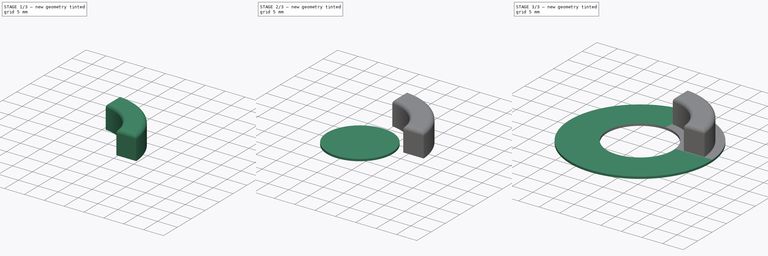
[diagram: build sequence overview — one tinted view per stage of 3, left to right]
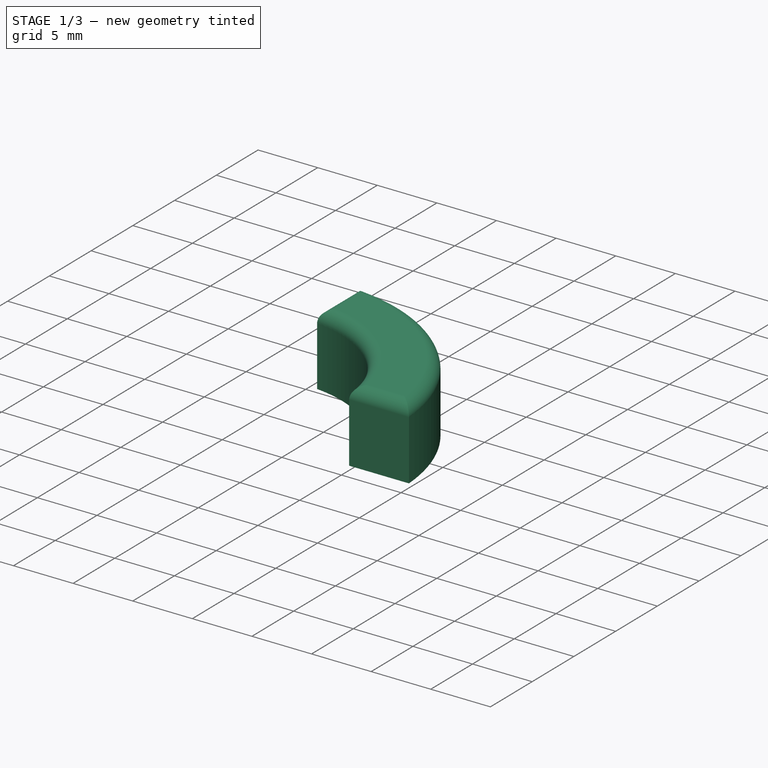
[diagram: stage 1 of 3 — iso view after this stage's code; geometry added in this stage tinted green]
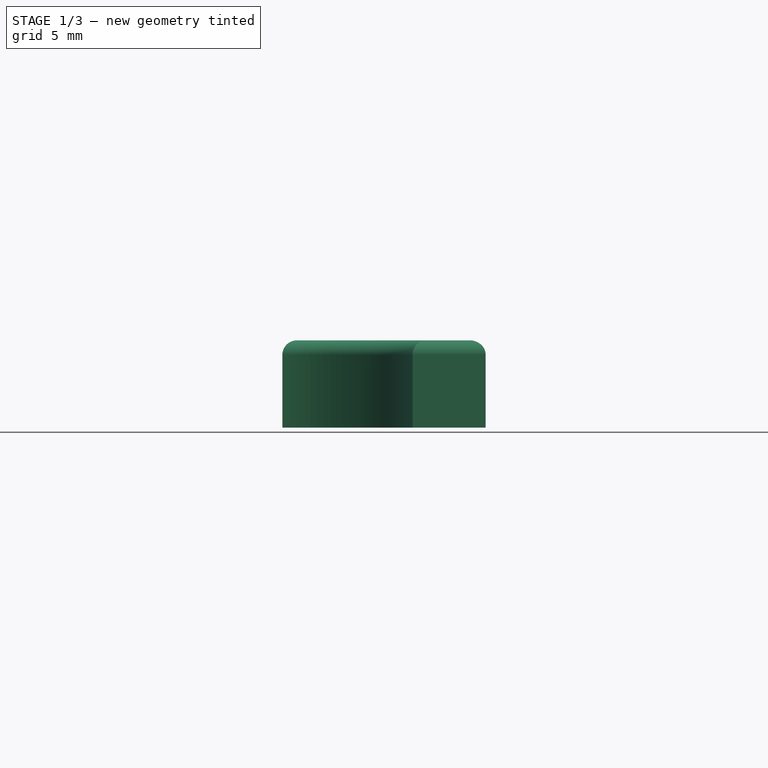
[diagram: stage 1 of 3 — front view after this stage's code; geometry added in this stage tinted green]
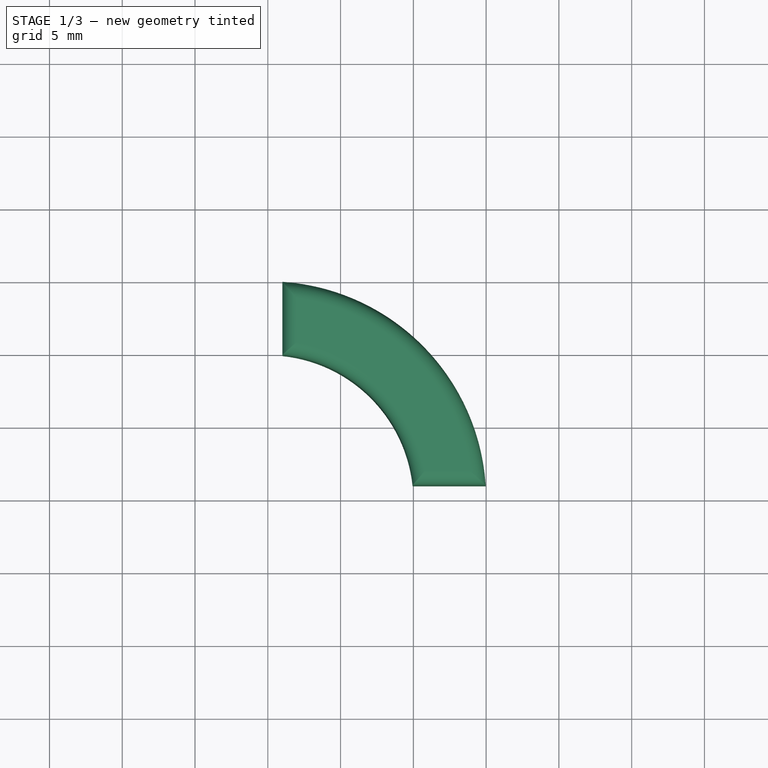
[diagram: stage 1 of 3 — top view after this stage's code; geometry added in this stage tinted green]
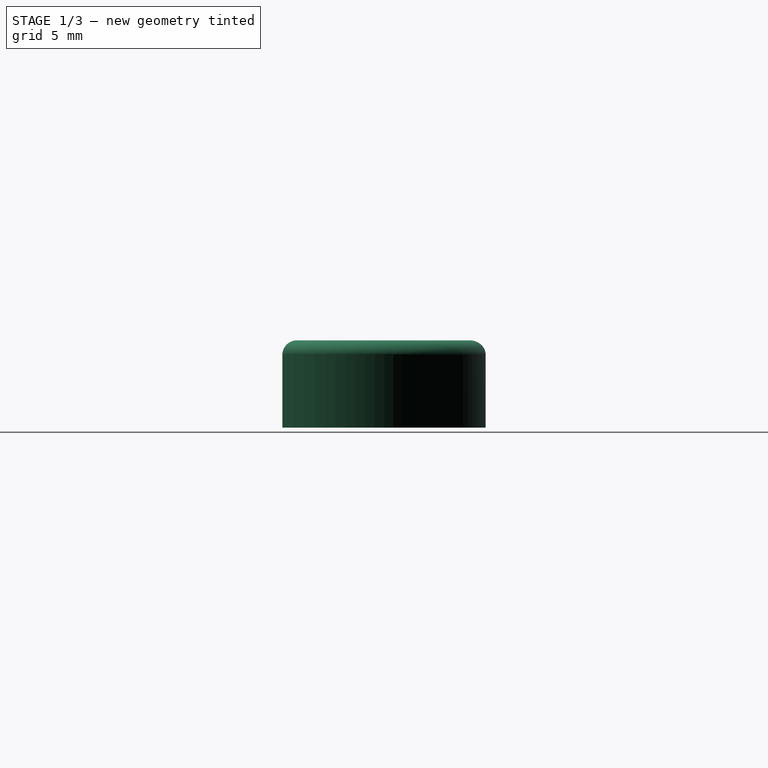
[diagram: stage 1 of 3 — right view after this stage's code; geometry added in this stage tinted green]
FCSTD DOCUMENT  (FreeCAD 0.16R6706 (Git))
Label: Button_Navigation_1.1
License: All rights reserved
LicenseURL: http://en.wikipedia.org/wiki/All_rights_reserved
objects: Sketcher::SketchObject×3, PartDesign::Pad×3, Part::Cut×1, PartDesign::Fillet×1
note: 11 computed .brp shape members not serialized (recipe doc carries the construction recipe); baked Part::Feature solids carry a one-line shape summary decoded from their .brp

FEATURE [Sketcher::SketchObject] Sketch003
  Placement = pos=(0,0,0.5) rot=(0,0,1;0rad)
  sketch-geometry (4):
    g0: LineSegment StartX=1 StartY=9.94987 StartZ=0 EndX=1 EndY=14.9666 EndZ=0
    g1: LineSegment StartX=9.94987 StartY=1 StartZ=0 EndX=14.9666 EndY=1 EndZ=0
    g2: ArcOfCircle CenterX=-0.028536 CenterY=-0.028536 CenterZ=0 NormalX=0 NormalY=0 NormalZ=1 Radius=10.0313 StartAngle=0.102713 EndAngle=1.46808
    g3: ArcOfCircle CenterX=0 CenterY=0 CenterZ=0 NormalX=0 NormalY=0 NormalZ=1 Radius=15 StartAngle=0.0667161 EndAngle=1.50408
  constraints (13):
    c: Vertical(g0)
    c: DistanceX(g-1,g0) = 1
    c: Distance(g-1,g0) = 10
    c: Distance(g-1,g0) = 15
    c: Horizontal(g1)
    c: DistanceY(g-1,g1) = 1
    c: Distance(g-1,g1) = 10
    c: Distance(g-1,g1) = 15
    c: Coincident(g2,g1)
    c: Coincident(g2,g0)
    c: Coincident(g3,g-1)
    c: Coincident(g3,g1)
    c: Coincident(g3,g0)
FEATURE [PartDesign::Pad] Pad003
  Length = 6
  Length2 = 100
  Placement = pos=(0,0,0.5) rot=(0,0,1;0rad)
  Sketch = -> Sketch003
  Type = 0
FEATURE [PartDesign::Fillet] Fillet
  Base = -> Pad003 [Edge4,Edge12,Edge10,Edge7]
  Placement = pos=(0,0,0.5) rot=(0,0,1;0rad)
  Radius = 1
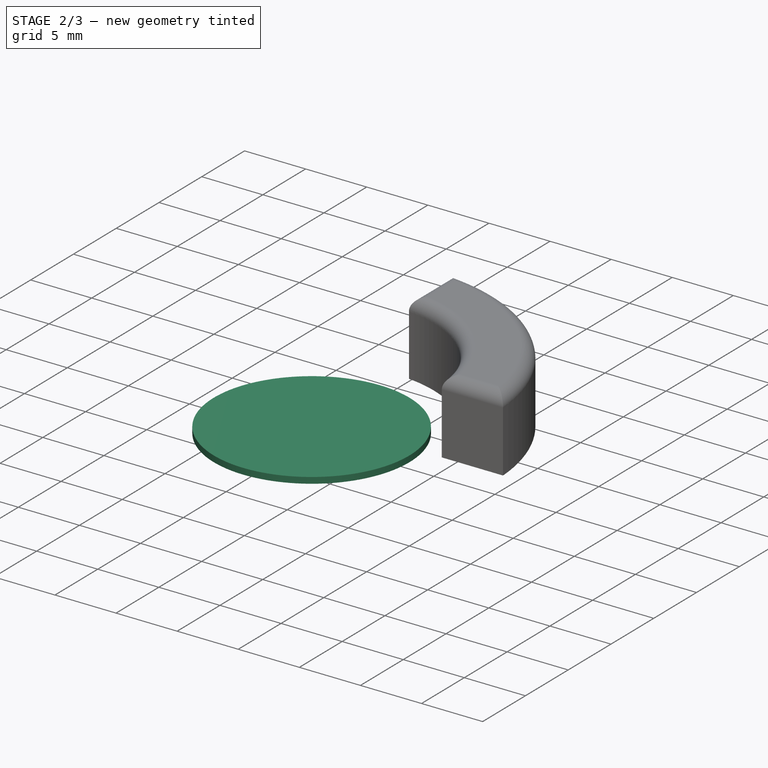
[diagram: stage 2 of 3 — iso view after this stage's code; geometry added in this stage tinted green]
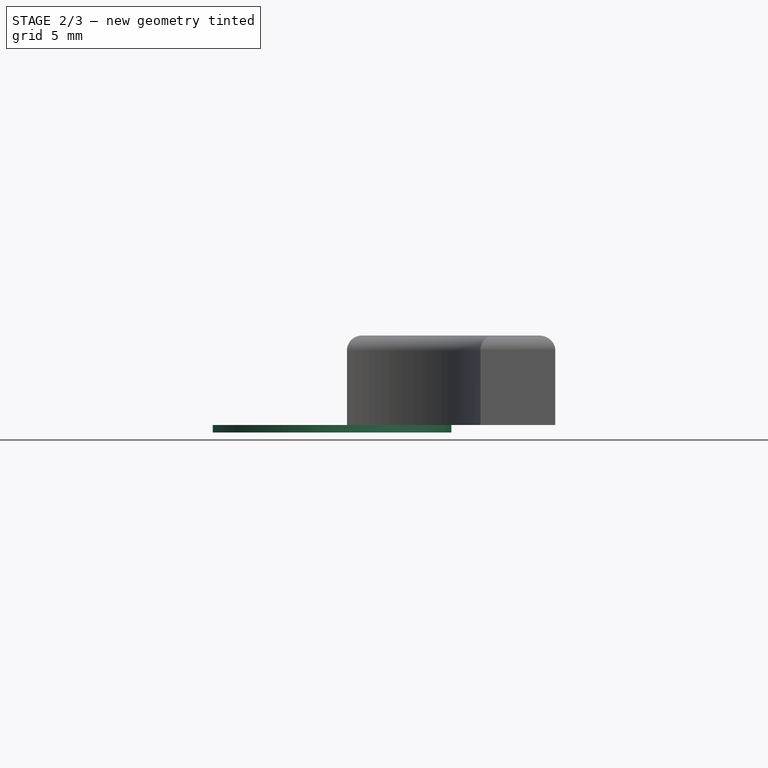
[diagram: stage 2 of 3 — front view after this stage's code; geometry added in this stage tinted green]
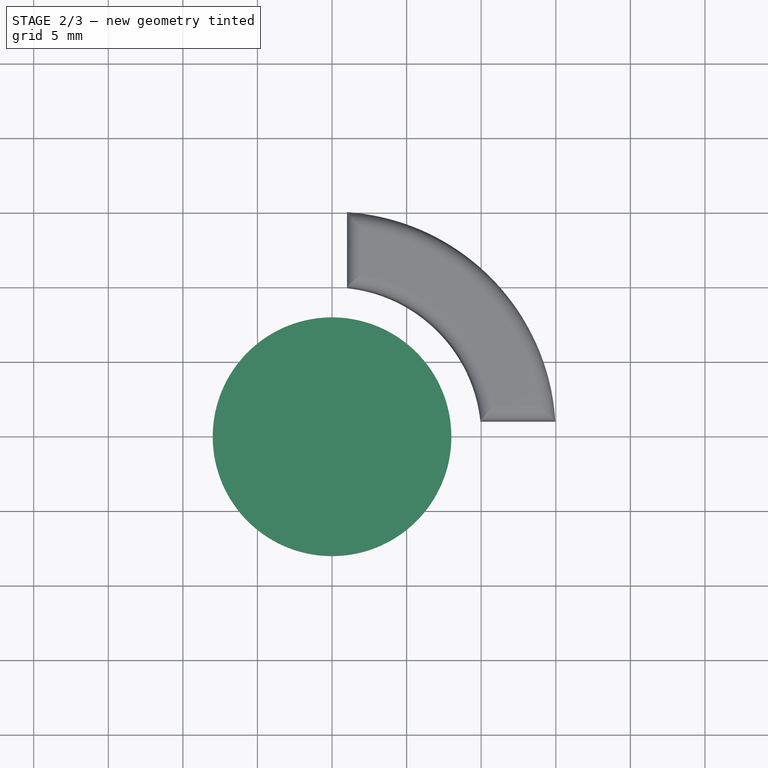
[diagram: stage 2 of 3 — top view after this stage's code; geometry added in this stage tinted green]
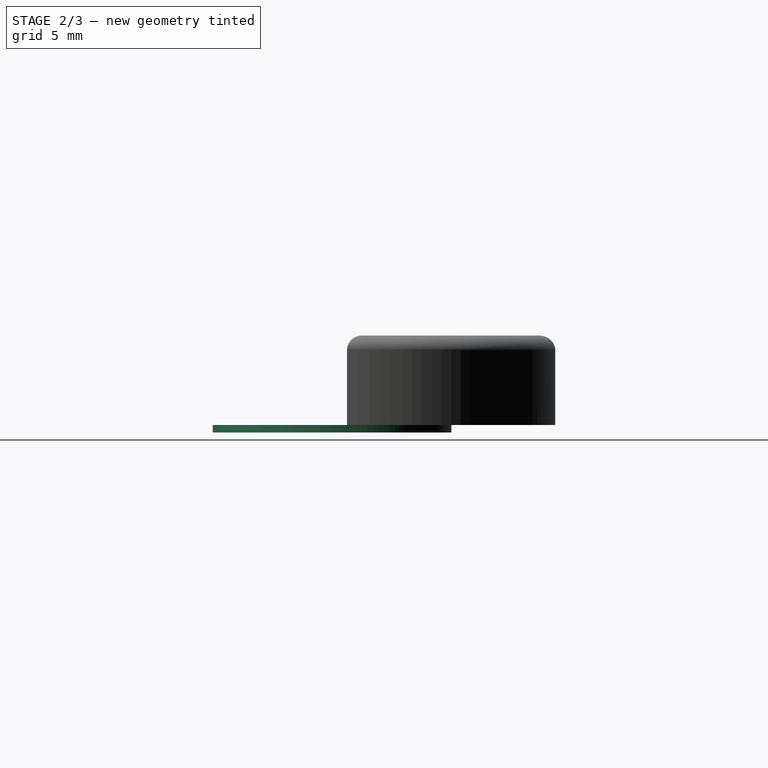
[diagram: stage 2 of 3 — right view after this stage's code; geometry added in this stage tinted green]
FEATURE [Sketcher::SketchObject] Sketch002
  sketch-geometry (1):
    g0: Circle CenterX=0 CenterY=0 CenterZ=0 NormalX=0 NormalY=0 NormalZ=1 Radius=8
  constraints (2):
    c: Coincident(g0,g-1)
    c: Radius(g0) = 8
FEATURE [PartDesign::Pad] Pad002
  Length = 0.5
  Length2 = 100
  Sketch = -> Sketch002
  Type = 0
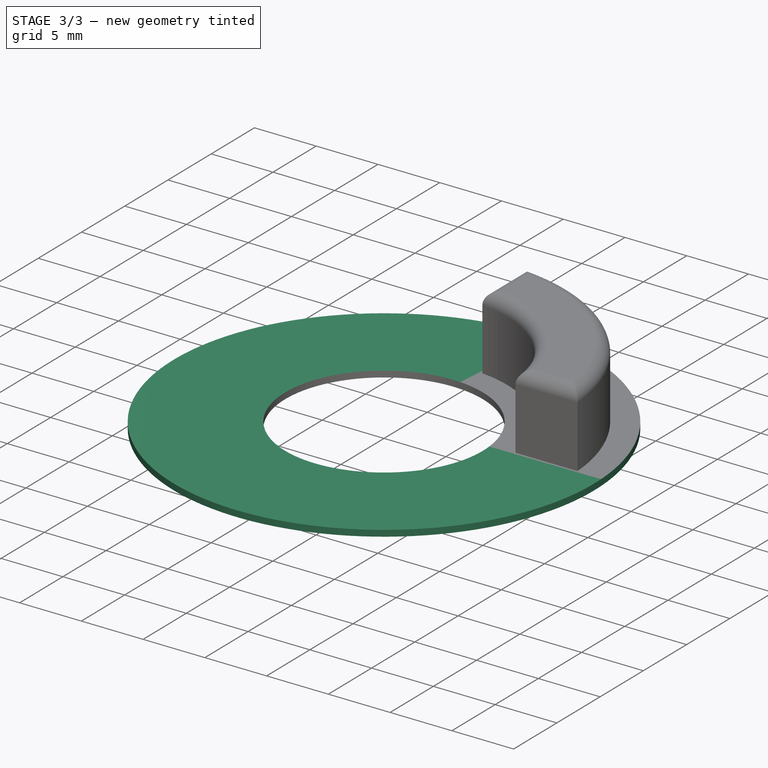
[diagram: stage 3 of 3 — iso view after this stage's code; geometry added in this stage tinted green]
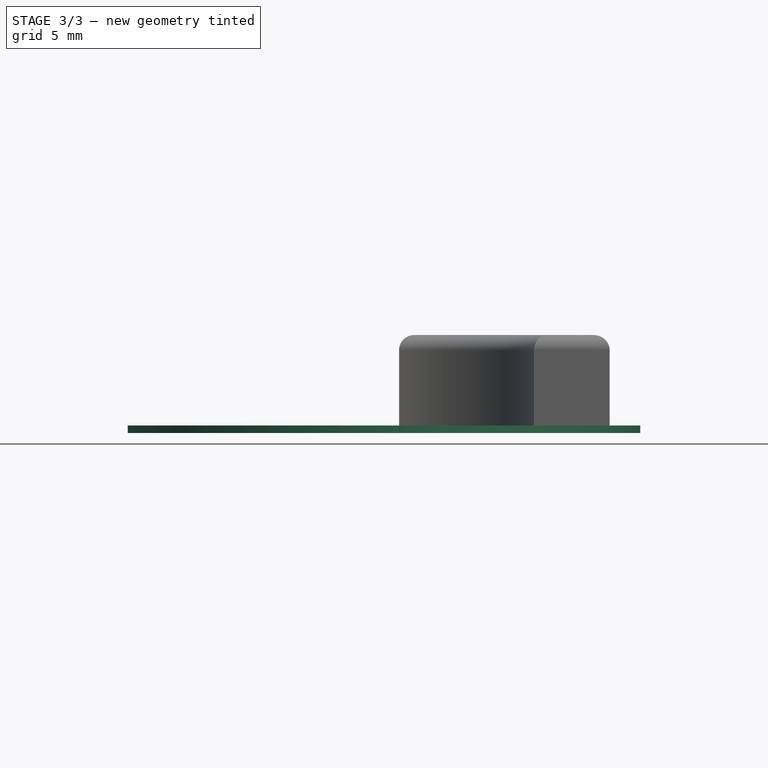
[diagram: stage 3 of 3 — front view after this stage's code; geometry added in this stage tinted green]
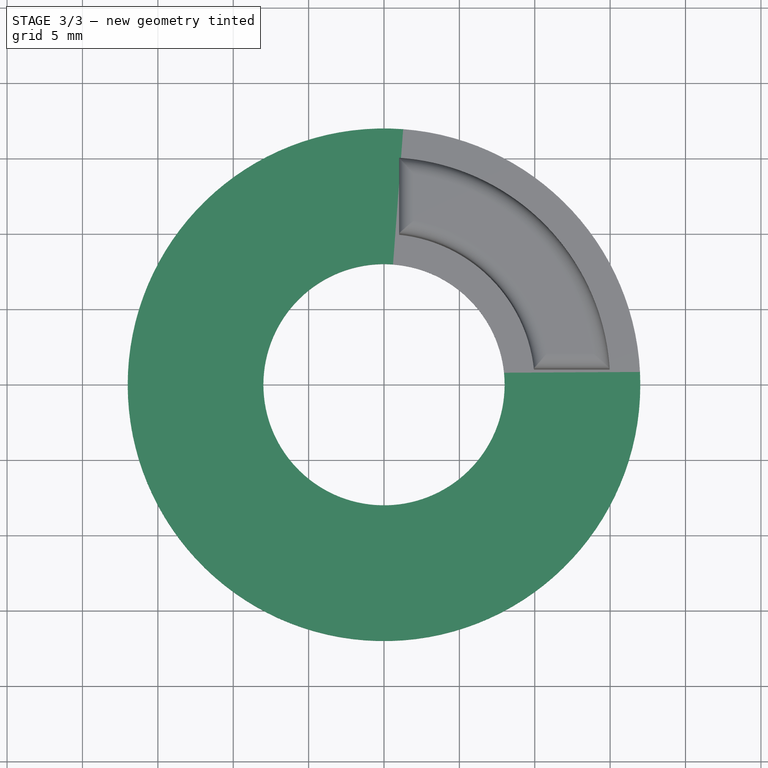
[diagram: stage 3 of 3 — top view after this stage's code; geometry added in this stage tinted green]
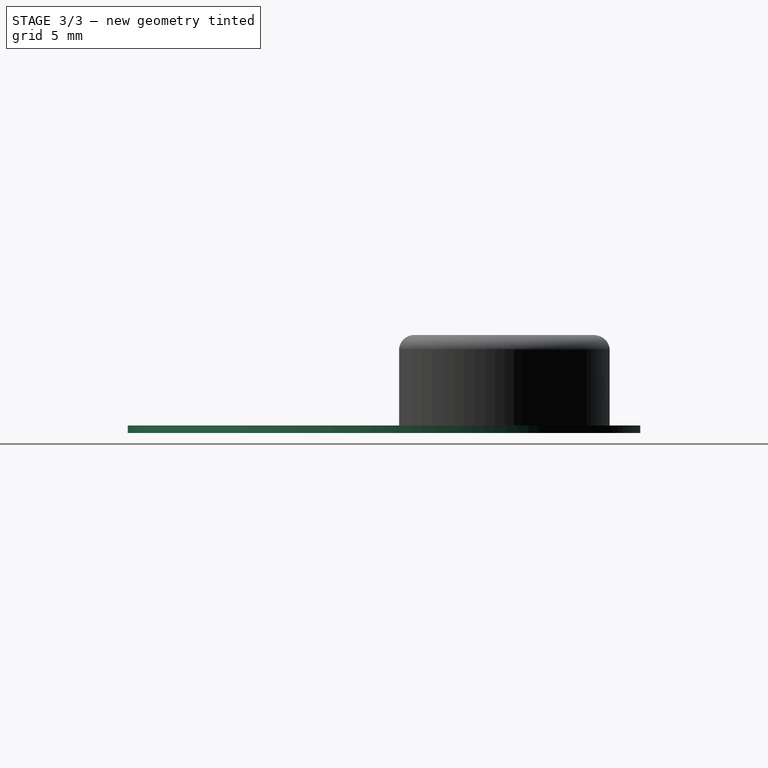
[diagram: stage 3 of 3 — right view after this stage's code; geometry added in this stage tinted green]
FEATURE [Sketcher::SketchObject] Sketch
  sketch-geometry (1):
    g0: Circle CenterX=0 CenterY=0 CenterZ=0 NormalX=0 NormalY=0 NormalZ=1 Radius=17
  constraints (2):
    c: Coincident(g0,g-1)
    c: Radius(g0) = 17
FEATURE [PartDesign::Pad] Pad
  Length = 0.5
  Length2 = 100
  Sketch = -> Sketch
  Type = 0
FEATURE [Part::Cut] Cut
  Base = -> Pad
  Tool = -> Pad002
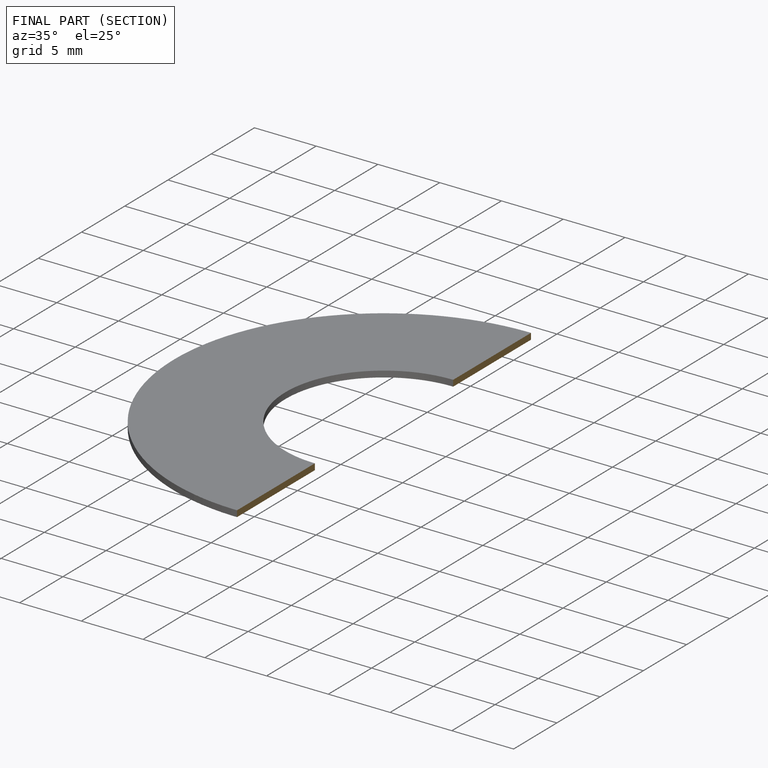
[diagram: finished part — half-section view (interior)]
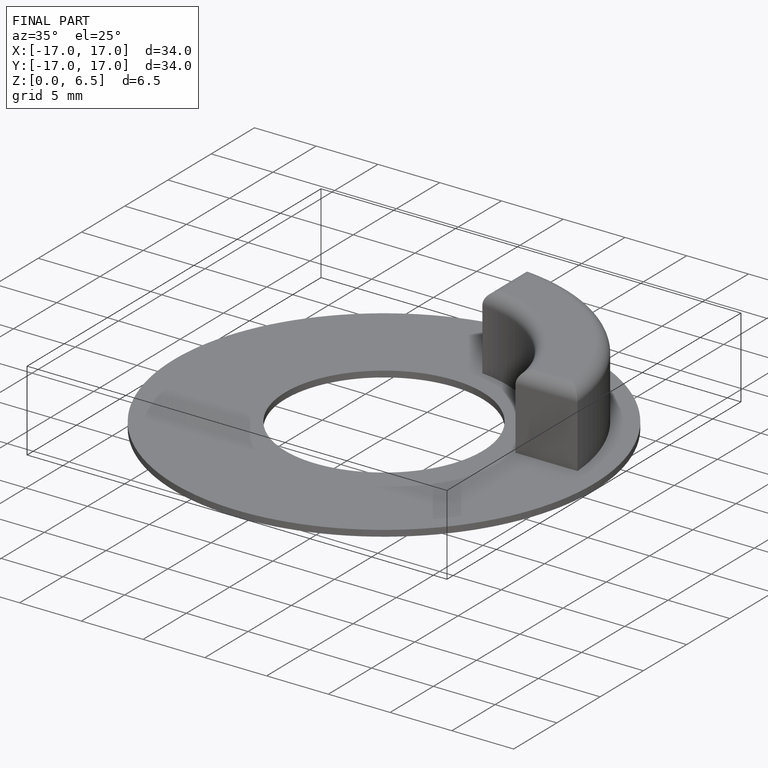
[diagram: finished part — iso view with bounding-box wireframe]
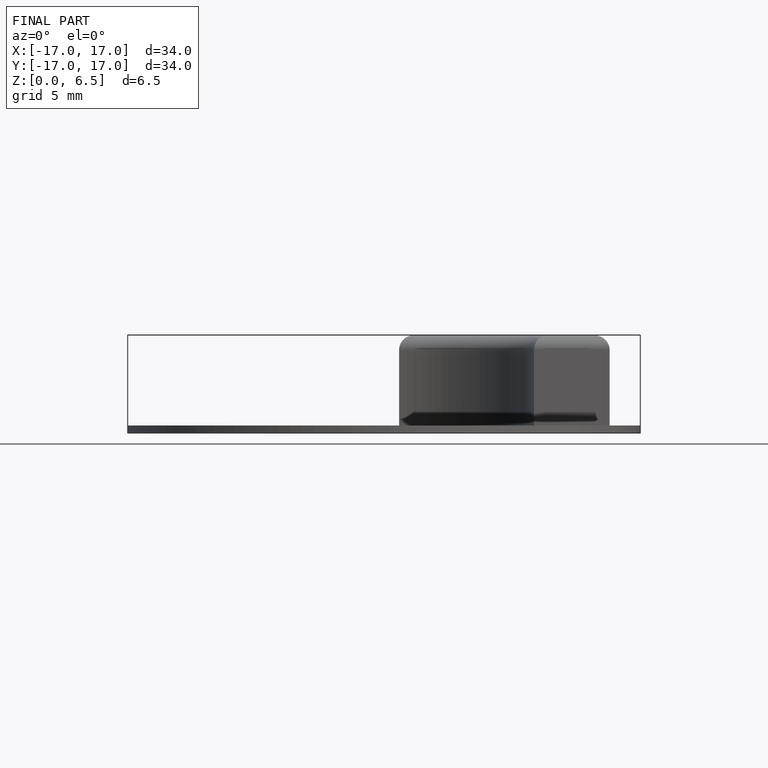
[diagram: finished part — front view with bounding-box wireframe]
